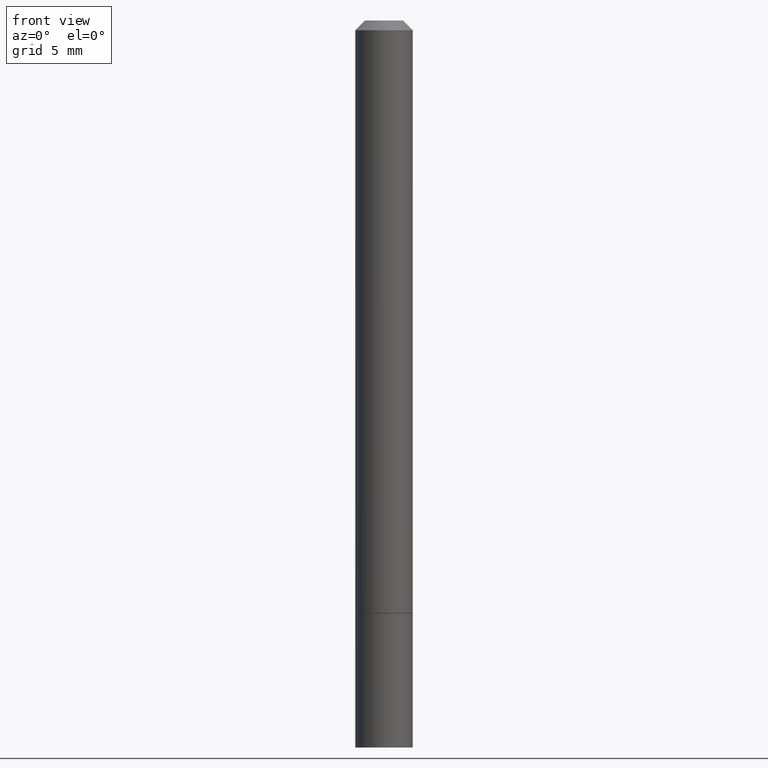
[diagram: clean part render]
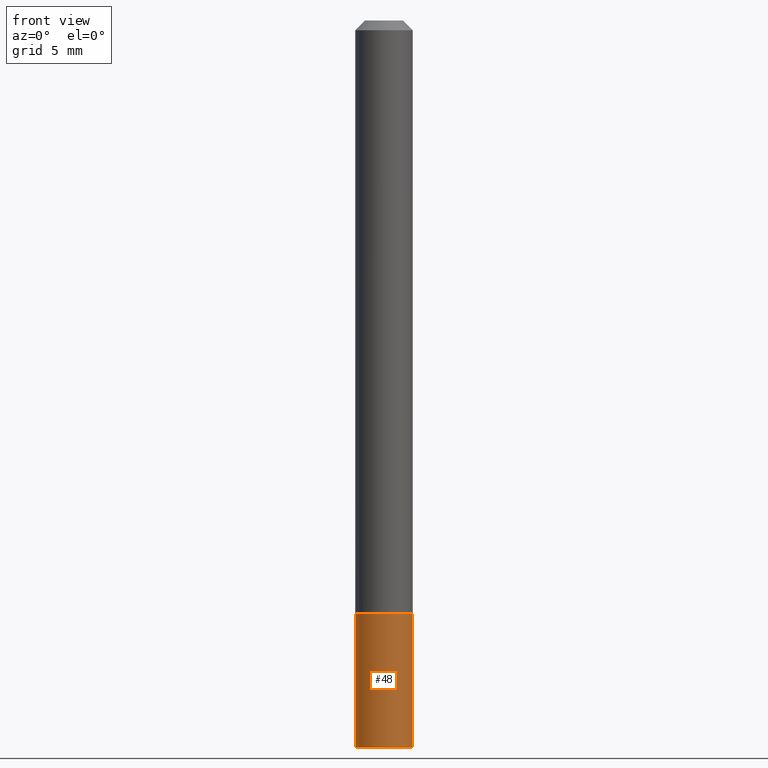
[diagram: same view with one face highlighted and labeled with its STEP entity id]
A machine part, front view. The second image highlights one B-rep face of the part: STEP entity #48.
In plain terms, the highlighted cylindrical surface (edge-blend (fillet) strip) has radius 1.4999 mm, axis along (-0, 0, 1).
Its self-contained STEP definition (entity closure, byte-faithful):
#2 = AXIS2_PLACEMENT_3D ( 'NONE', #119, #258, #173 ) ;
#22 = CARTESIAN_POINT ( 'NONE',  ( -0.05905000000000001914, -4.322903617084304851E-15, -1.220499999999999696 ) ) ;
#38 = EDGE_CURVE ( 'NONE', #360, #266, #365, .T. ) ;
#48 = ADVANCED_FACE ( 'NONE', ( #221 ), #138, .T. ) ;
#59 = DIRECTION ( 'NONE',  ( 1.000000000000000000, -6.982962677686270655E-15, 0.000000000000000000 ) ) ;
#71 = VERTEX_POINT ( 'NONE', #22 ) ;
#86 = DIRECTION ( 'NONE',  ( -2.445468806185136597E-29, 3.491481338843145583E-15, 1.000000000000000000 ) ) ;
#90 = CIRCLE ( 'NONE', #289, 0.05905000000000001914 ) ;
#92 = CARTESIAN_POINT ( 'NONE',  ( 0.05905000000000001914, -5.635949177160603791E-15, -1.496099999999999985 ) ) ;
#100 = ORIENTED_EDGE ( 'NONE', *, *, #38, .T. ) ;
#110 = CARTESIAN_POINT ( 'NONE',  ( 2.984694677948958351E-29, -4.261352974058058239E-15, -1.220499999999999696 ) ) ;
#111 = DIRECTION ( 'NONE',  ( -2.445468806185136597E-29, 3.491481338843145583E-15, 1.000000000000000000 ) ) ;
#113 = LINE ( 'NONE', #341, #242 ) ;
#117 = CIRCLE ( 'NONE', #2, 0.05905000000000001914 ) ;
#119 = CARTESIAN_POINT ( 'NONE',  ( 3.658665880933582389E-29, -5.223605231043229660E-15, -1.496099999999999985 ) ) ;
#138 = CYLINDRICAL_SURFACE ( 'NONE', #141, 0.05905000000000001914 ) ;
#141 = AXIS2_PLACEMENT_3D ( 'NONE', #192, #86, #302 ) ;
#144 = DIRECTION ( 'NONE',  ( -2.445468806185136877E-29, 3.491481338843145188E-15, 1.000000000000000000 ) ) ;
#151 = EDGE_CURVE ( 'NONE', #71, #266, #90, .T. ) ;
#160 = VERTEX_POINT ( 'NONE', #169 ) ;
#169 = CARTESIAN_POINT ( 'NONE',  ( -0.05905000000000001914, -4.322903617084304851E-15, -1.496099999999999985 ) ) ;
#173 = DIRECTION ( 'NONE',  ( 1.000000000000000000, -6.982962677686270655E-15, 0.000000000000000000 ) ) ;
#177 = CARTESIAN_POINT ( 'NONE',  ( 0.05905000000000001914, -4.673696920175432370E-15, -1.220499999999999696 ) ) ;
#192 = CARTESIAN_POINT ( 'NONE',  ( 0.000000000000000000, 0.000000000000000000, 0.000000000000000000 ) ) ;
#208 = ORIENTED_EDGE ( 'NONE', *, *, #276, .T. ) ;
#209 = VECTOR ( 'NONE', #275, 39.37007874015748143 ) ;
#221 = FACE_OUTER_BOUND ( 'NONE', #264, .T. ) ;
#242 = VECTOR ( 'NONE', #144, 39.37007874015748143 ) ;
#258 = DIRECTION ( 'NONE',  ( -2.445468806185136597E-29, 3.491481338843145583E-15, 1.000000000000000000 ) ) ;
#264 = EDGE_LOOP ( 'NONE', ( #313, #208, #100, #295 ) ) ;
#266 = VERTEX_POINT ( 'NONE', #177 ) ;
#275 = DIRECTION ( 'NONE',  ( -2.445468806185136877E-29, 3.491481338843145188E-15, 1.000000000000000000 ) ) ;
#276 = EDGE_CURVE ( 'NONE', #160, #360, #117, .T. ) ;
#289 = AXIS2_PLACEMENT_3D ( 'NONE', #110, #111, #59 ) ;
#295 = ORIENTED_EDGE ( 'NONE', *, *, #151, .F. ) ;
#302 = DIRECTION ( 'NONE',  ( 1.000000000000000000, -6.982962677686266711E-15, 4.876176775795935793E-29 ) ) ;
#305 = EDGE_CURVE ( 'NONE', #160, #71, #113, .T. ) ;
#313 = ORIENTED_EDGE ( 'NONE', *, *, #305, .F. ) ;
#338 = CARTESIAN_POINT ( 'NONE',  ( 0.05905000000000001914, -4.123439461173741806E-16, 2.879382386107500921E-30 ) ) ;
#341 = CARTESIAN_POINT ( 'NONE',  ( -0.05905000000000001914, 4.195754854663392958E-16, -2.904631170795522943E-30 ) ) ;
#360 = VERTEX_POINT ( 'NONE', #92 ) ;
#365 = LINE ( 'NONE', #338, #209 ) ;